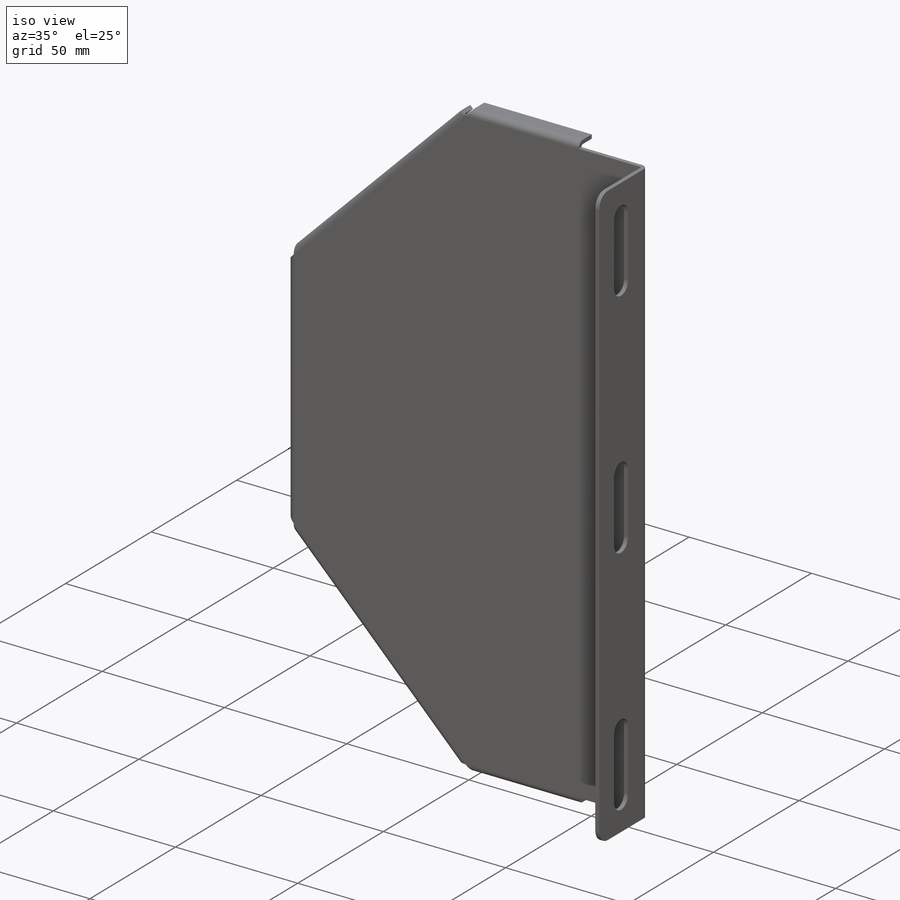
[diagram: iso view]
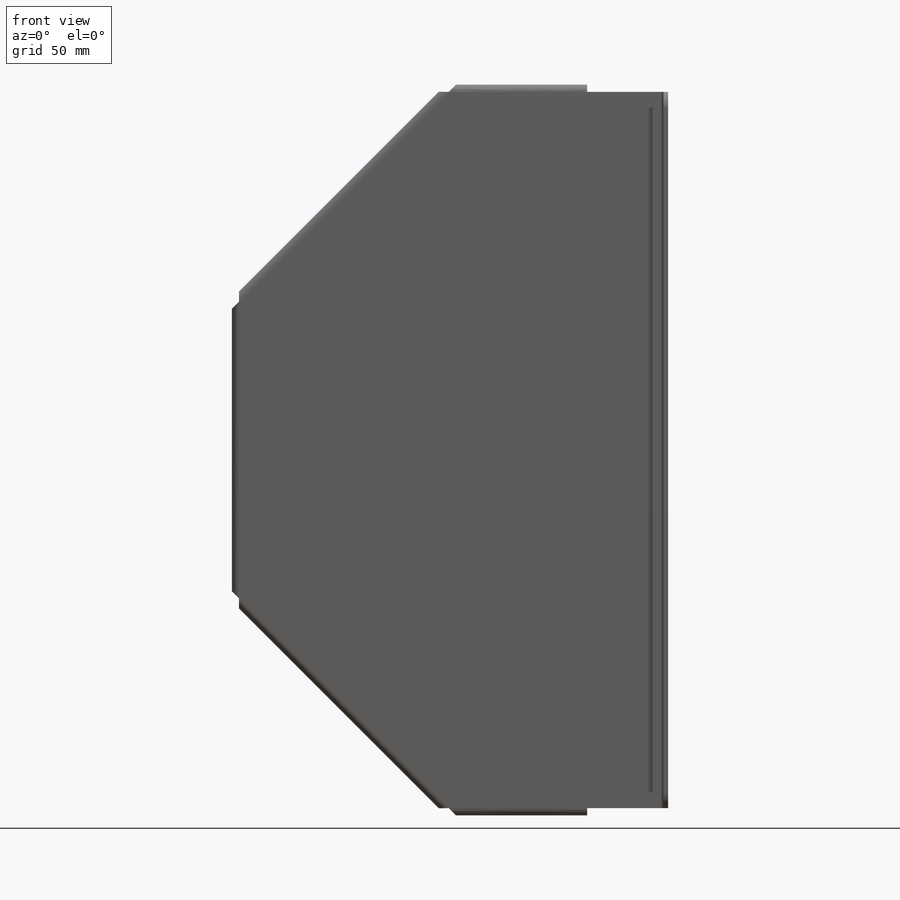
[diagram: front view]
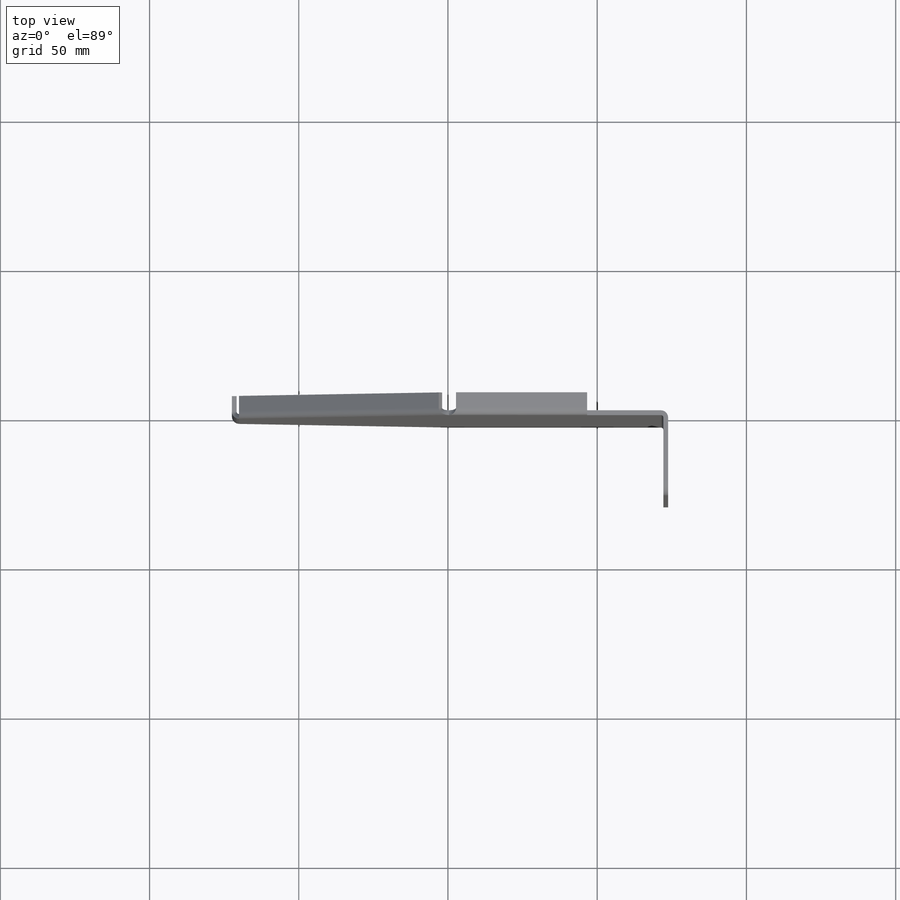
[diagram: top view]
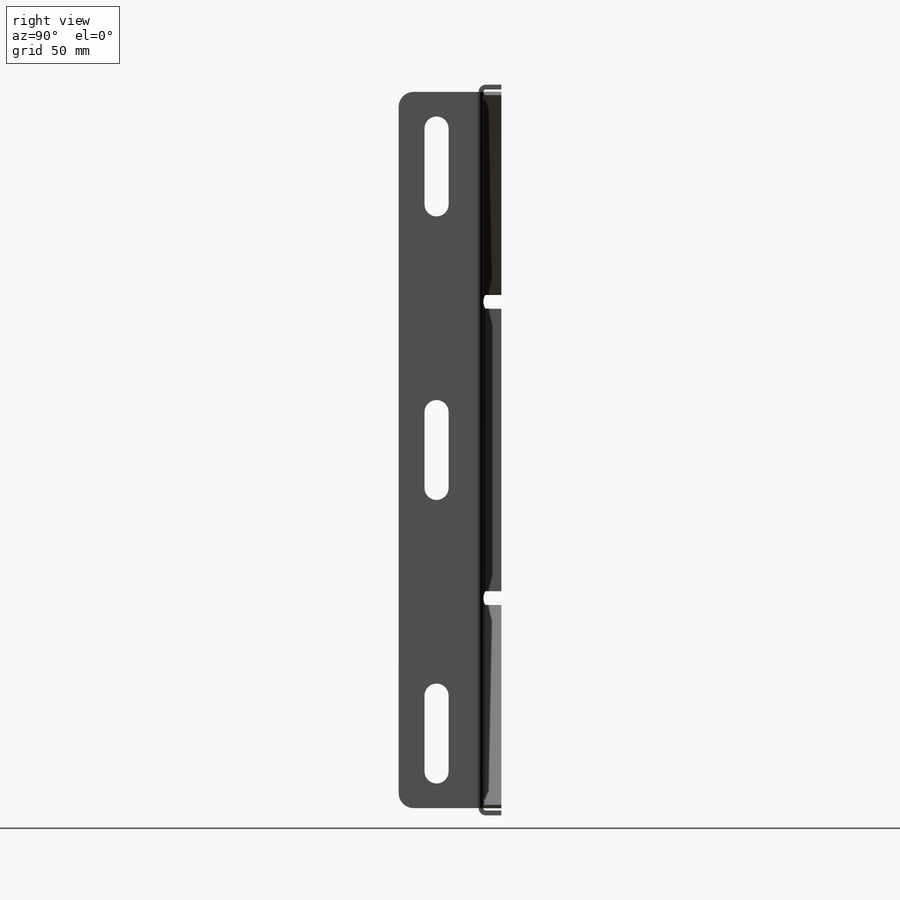
[diagram: right view]
SOLIDWORKS PART (.sldprt)
format: sldprt  version: not decoded by parser v0  size: 936,960 bytes
history: native  units: mm
features: sketch x11, sheet_metal_op x4, cut_extrude x3, pattern_linear x2, material x1, plane x1 + 7 further entries (+11 scaffold rows collapsed; 1 parser-record rows omitted)
feature tree (41):
  scaffold x11  (default folders/planes/origin — collapsed)
  material  "5052-O"
  sketch  "Sketch1"  dims[c1.D3=20.0mm c1.D4=70.0mm c1.D2=120.0mm c2.D4=150.0mm c2.D1=6.35mm c2.D2=3.175mm c2.D5=~7.247001mm c3.D4=0.5mm c3.D1=20.0mm]
  sheet_metal_op  "Sheet-Metal2"
  sheet_metal_op  "Base-Flange2"
  sketch  "Sketch22"  dims[c1.D1=0.8mm c1.D4=90.0deg c1.D5=12.0 c1.D8=~0.79375mm c1.D9=~0.79375mm c2.D1=0.8mm c2.D2=500.0mm c2.D3=0.0mm c2.D6=10.0mm c2.D7=300.0mm c2.D8=1.0mm]
  sheet_metal_op  "Sheet-Metal3"  Thickness=1.6mm
  sketch  "Sketch33"
  cut_extrude  "Cut-Extrude4"  [1 undecoded]
  plane  "Plane8"
  sketch  "Sketch70"  dims[c1.D1=6.0mm c2.D1=0.8mm c2.D4=90.0deg c2.D5=15.0 c2.D8=0.8mm c2.D9=0.8mm c3.D1=0.8mm c3.D4=90.0deg c3.D5=16.0 c3.D8=0.8mm c3.D9=0.8mm c4.D1=0.8mm c4.D4=90.0deg c4.D5=17.0 c4.D8=0.8mm c4.D9=0.8mm c5.D1=0.8mm c5.D4=90.0deg c5.D5=18.0 c5.D8=0.8mm c5.D9=0.8mm c6.D1=0.8mm c6.D4=90.0deg c6.D5=19.0 c6.D8=0.8mm c6.D9=0.8mm c7.D1=0.8mm c7.D2=500.0mm c7.D3=0.0mm c8.D2=1.0mm c8.D3=1.0mm]
  sketch  "Sketch71"
  cut_extrude  "Cut-Extrude5"  Depth=0 Edge-Flange4=0
  sketch  "Sketch81"  dims[D1=26.813mm]
  sheet_metal_op  "EdgeBend4"
  sketch  "Sketch82"  dims[D1=8.1mm D2=25.4mm D3=16.513mm]
  cut_extrude  "Cut-Extrude6"  [1 undecoded]
  pattern_linear  "LPattern1"  Count1=2 Count2=2 Spacing1=95mm Spacing2=95mm
  "Flat-Pattern2"
  sketch  "Bend-Lines2"
  sketch  "Bounding-Box2"
  "Flatten-<Miterbend16>1"
  "Flatten-<Miterbend17>1"
  "Flatten-<Miterbend18>1"
  "Flatten-<Miterbend19>1"
  "Flatten-<Miterbend20>1"
  parser-record x1  (decoder bookkeeping rows leaked as tree rows — omitted from the tree; the rows remain in map.json)
  "Flatten-<EdgeBend4>1"
  pattern_linear  "Flat-Pattern3"  [2 undecoded]
  sketch  "Bend-Lines3"
  sketch  "Bounding-Box3"
decode coverage: 8 of 20 modeling features carry decoded parameters; 7 rows unclassified (native names shown)
note: ~ marks probable driven/reference dimensions
note: 4 parameter values undecoded
note: suppression state not decoded; provenance and decode notes live in map.json
